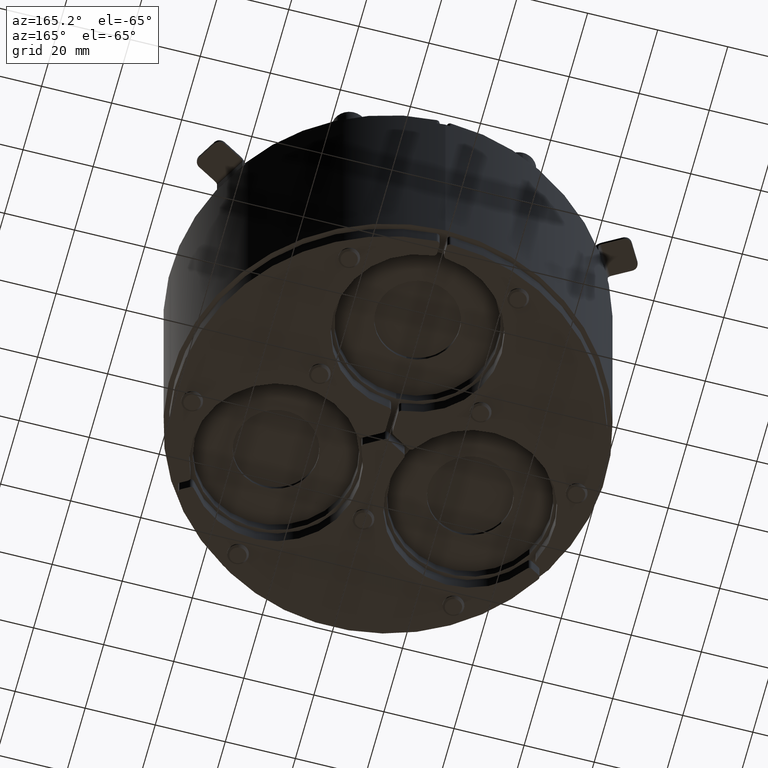
[diagram: clean part render]
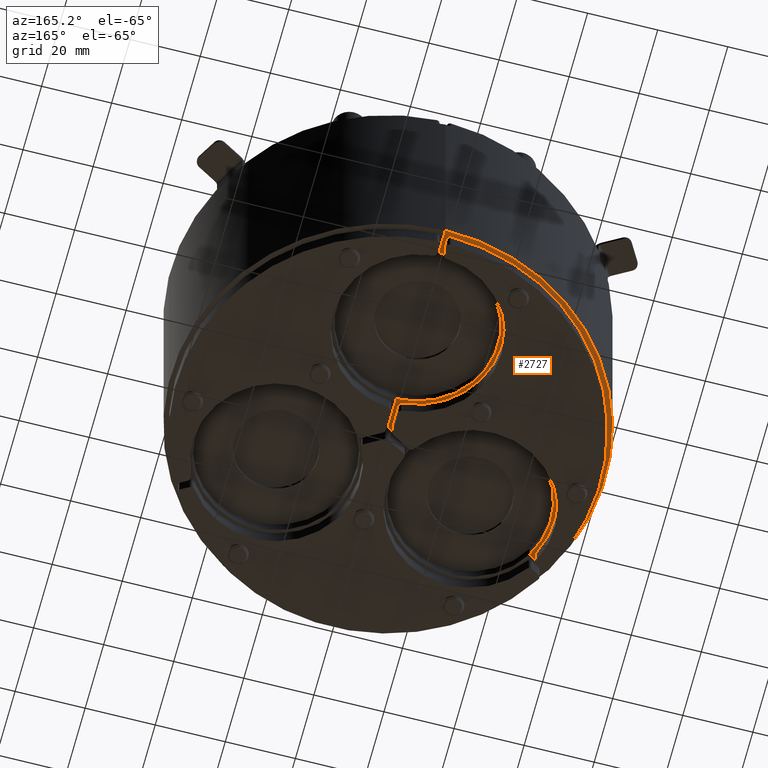
[diagram: same view with one face highlighted and labeled with its STEP entity id]
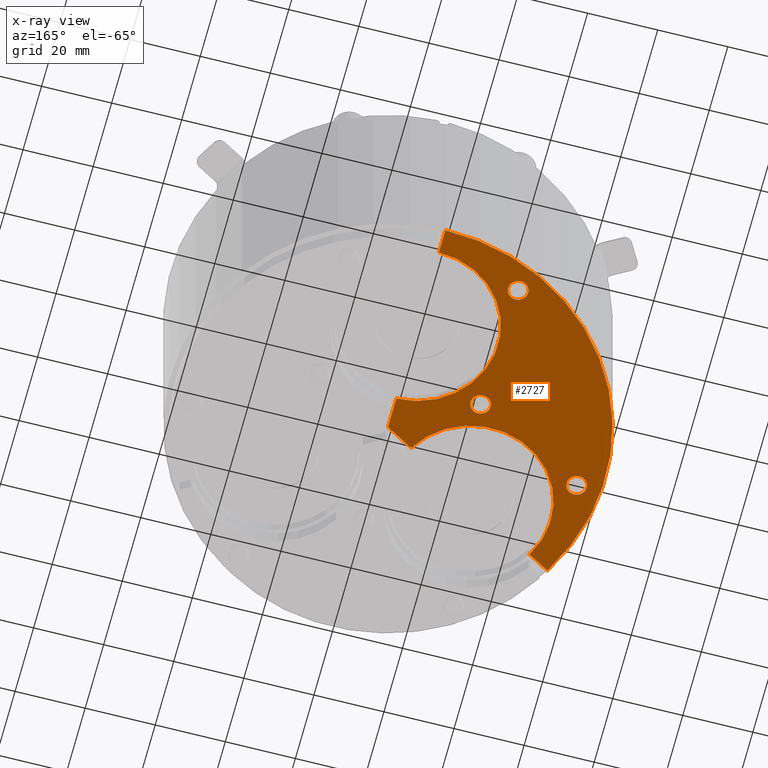
[diagram: x-ray of the same camera — body ghosted, the highlighted face saturated]
A machine part, auxiliary view. The second image highlights one B-rep face of the part: STEP entity #2727.
The next image is the same camera in x-ray: the body ghosted, the highlighted face saturated — about 0% of this face is hidden behind the body in this view.
In plain terms, the highlighted planar face has unit normal (0, 0, 1).
Its self-contained STEP definition (entity closure, byte-faithful):
#210=FACE_BOUND('',#590,.T.);
#211=FACE_BOUND('',#591,.T.);
#212=FACE_BOUND('',#592,.T.);
#265=PLANE('',#3210);
#407=FACE_OUTER_BOUND('',#589,.T.);
#589=EDGE_LOOP('',(#2309,#2310,#2311,#2312,#2313,#2314,#2315));
#590=EDGE_LOOP('',(#2316));
#591=EDGE_LOOP('',(#2317));
#592=EDGE_LOOP('',(#2318));
#784=LINE('',#4744,#1006);
#788=LINE('',#4756,#1010);
#792=LINE('',#4768,#1014);
#796=LINE('',#4778,#1018);
#1006=VECTOR('',#3850,10.);
#1010=VECTOR('',#3862,10.);
#1014=VECTOR('',#3874,10.);
#1018=VECTOR('',#3886,10.);
#1181=CIRCLE('',#3189,2.85);
#1183=CIRCLE('',#3192,2.85);
#1185=CIRCLE('',#3195,2.85);
#1187=CIRCLE('',#3199,23.);
#1189=CIRCLE('',#3203,62.);
#1191=CIRCLE('',#3207,23.);
#1369=VERTEX_POINT('',#4722);
#1371=VERTEX_POINT('',#4728);
#1373=VERTEX_POINT('',#4734);
#1376=VERTEX_POINT('',#4741);
#1377=VERTEX_POINT('',#4743);
#1379=VERTEX_POINT('',#4749);
#1381=VERTEX_POINT('',#4755);
#1383=VERTEX_POINT('',#4761);
#1385=VERTEX_POINT('',#4767);
#1387=VERTEX_POINT('',#4773);
#1684=EDGE_CURVE('',#1369,#1369,#1181,.T.);
#1687=EDGE_CURVE('',#1371,#1371,#1183,.T.);
#1690=EDGE_CURVE('',#1373,#1373,#1185,.T.);
#1693=EDGE_CURVE('',#1377,#1376,#784,.T.);
#1696=EDGE_CURVE('',#1379,#1377,#1187,.T.);
#1699=EDGE_CURVE('',#1381,#1379,#788,.T.);
#1702=EDGE_CURVE('',#1383,#1381,#1189,.T.);
#1705=EDGE_CURVE('',#1385,#1383,#792,.T.);
#1708=EDGE_CURVE('',#1387,#1385,#1191,.T.);
#1711=EDGE_CURVE('',#1376,#1387,#796,.T.);
#2309=ORIENTED_EDGE('',*,*,#1711,.T.);
#2310=ORIENTED_EDGE('',*,*,#1708,.T.);
#2311=ORIENTED_EDGE('',*,*,#1705,.T.);
#2312=ORIENTED_EDGE('',*,*,#1702,.T.);
#2313=ORIENTED_EDGE('',*,*,#1699,.T.);
#2314=ORIENTED_EDGE('',*,*,#1696,.T.);
#2315=ORIENTED_EDGE('',*,*,#1693,.T.);
#2316=ORIENTED_EDGE('',*,*,#1684,.T.);
#2317=ORIENTED_EDGE('',*,*,#1687,.T.);
#2318=ORIENTED_EDGE('',*,*,#1690,.T.);
#2727=ADVANCED_FACE('',(#407,#210,#211,#212),#265,.F.);
#3189=AXIS2_PLACEMENT_3D('',#4724,#3830,#3831);
#3192=AXIS2_PLACEMENT_3D('',#4730,#3837,#3838);
#3195=AXIS2_PLACEMENT_3D('',#4736,#3844,#3845);
#3199=AXIS2_PLACEMENT_3D('',#4750,#3856,#3857);
#3203=AXIS2_PLACEMENT_3D('',#4762,#3868,#3869);
#3207=AXIS2_PLACEMENT_3D('',#4774,#3880,#3881);
#3210=AXIS2_PLACEMENT_3D('',#4780,#3889,#3890);
#3830=DIRECTION('center_axis',(0.,0.,1.));
#3831=DIRECTION('ref_axis',(1.,0.,0.));
#3837=DIRECTION('center_axis',(0.,0.,1.));
#3838=DIRECTION('ref_axis',(1.,0.,0.));
#3844=DIRECTION('center_axis',(0.,0.,1.));
#3845=DIRECTION('ref_axis',(1.,0.,0.));
#3850=DIRECTION('',(0.,-1.,0.));
#3856=DIRECTION('center_axis',(0.,0.,1.));
#3857=DIRECTION('ref_axis',(-1.,0.,0.));
#3862=DIRECTION('',(1.22464679914735E-16,-1.,0.));
#3868=DIRECTION('center_axis',(0.,0.,-1.));
#3869=DIRECTION('ref_axis',(1.,0.,0.));
#3874=DIRECTION('',(-0.866025403784438,-0.5,0.));
#3880=DIRECTION('center_axis',(0.,0.,1.));
#3881=DIRECTION('ref_axis',(-1.,0.,0.));
#3886=DIRECTION('',(-0.866025403784439,-0.5,0.));
#3889=DIRECTION('center_axis',(0.,0.,1.));
#3890=DIRECTION('ref_axis',(1.,0.,0.));
#4722=CARTESIAN_POINT('',(-25.7996732002877,13.25,-23.));
#4724=CARTESIAN_POINT('Origin',(-22.9496732002877,13.25,-23.));
#4728=CARTESIAN_POINT('',(-26.9604130733993,49.4336725464542,-23.));
#4730=CARTESIAN_POINT('Origin',(-24.1104130733993,49.4336725464542,-23.));
#4734=CARTESIAN_POINT('',(-57.7160227642903,-3.83660605592691,-23.));
#4736=CARTESIAN_POINT('Origin',(-54.8660227642903,-3.83660605592691,-23.));
#4741=CARTESIAN_POINT('',(0.,0.,-23.));
#4743=CARTESIAN_POINT('',(0.,9.,-23.));
#4744=CARTESIAN_POINT('',(0.,0.,-23.));
#4749=CARTESIAN_POINT('',(4.44089209850063E-15,55.,-23.));
#4750=CARTESIAN_POINT('Origin',(0.,32.,-23.));
#4755=CARTESIAN_POINT('',(4.44089209850063E-15,62.,-23.));
#4756=CARTESIAN_POINT('',(4.83491892146164E-15,55.,-23.));
#4761=CARTESIAN_POINT('',(-53.6935750346352,-31.,-23.));
#4762=CARTESIAN_POINT('Origin',(0.,0.,-23.));
#4767=CARTESIAN_POINT('',(-47.6313972081441,-27.5,-23.));
#4768=CARTESIAN_POINT('',(-53.6935750346352,-31.,-23.));
#4773=CARTESIAN_POINT('',(-7.79422863405995,-4.5,-23.));
#4774=CARTESIAN_POINT('Origin',(-27.712812921102,-16.,-23.));
#4778=CARTESIAN_POINT('',(-7.79422863405995,-4.5,-23.));
#4780=CARTESIAN_POINT('Origin',(-31.1484207837352,17.9835341365811,-23.));